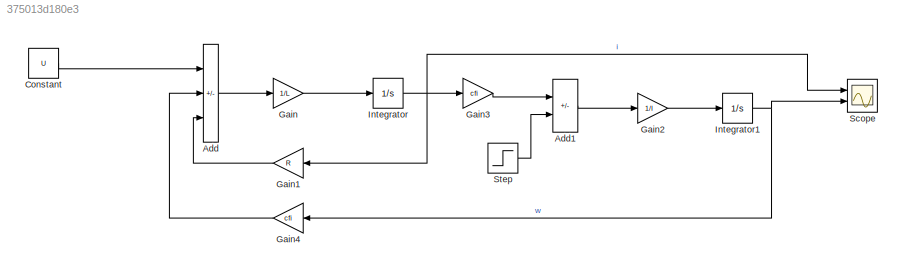
MODEL slx_375013d180e3
KIND model
CONFIG AbsTol = auto
CONFIG EnableMultiTasking = off
CONFIG FixedStep = auto
CONFIG MaxStep = 1e-3
CONFIG MinStep = auto
CONFIG RelTol = 1e-3
CONFIG SampleTimeConstraint = Unconstrained
CONFIG Solver = VariableStepAuto
CONFIG SolverName = VariableStepAuto
CONFIG StartTime = 0.0
CONFIG StopTime = 2
BLOCK [Sum] Add
  IconShape = rectangular
  Inputs = +--
  Ports = [3, 1]
BLOCK [Sum] Add1
  IconShape = rectangular
  Inputs = +-
  Ports = [2, 1]
BLOCK [Constant] Constant
  Value = U
BLOCK [Gain] Gain
  Gain = 1/L
BLOCK [Gain] Gain1
  Gain = R
BLOCK [Gain] Gain2
  Gain = 1/I
BLOCK [Gain] Gain3
  Gain = cfi
BLOCK [Gain] Gain4
  Gain = cfi
BLOCK [Integrator] Integrator
  Ports = [1, 1]
BLOCK [Integrator] Integrator1
  Ports = [1, 1]
BLOCK [Scope] Scope
  Floating = off
  NumInputPorts = 2
  Ports = [2]
  ScopeSpecificationString = Simulink.scopes.TimeScopeBlockCfg('CurrentConfiguration', extmgr.ConfigurationSet(extmgr.Configuration('Core','General UI',true),extmgr.Configuration('Core','Source UI',true),extmgr.Configuration('Sources','WiredSimulink',true),extmgr.Configuration('Visuals','Time Domain',true,'SerializedDisplays',{struct('MinYLimReal','-5.3306','MaxYLimReal','6.0995','YLabelReal','','MinYLimMag','0.00000','MaxYLi...<+2060ch>
BLOCK [Step] Step
  After = Mz
  SampleTime = 0
LINE Add1:1 -> Gain2:1
LINE Add:1 -> Gain:1
LINE Constant:1 -> Add:1
LINE Gain1:1 -> Add:3
LINE Gain2:1 -> Integrator1:1
LINE Gain3:1 -> Add1:1
LINE Gain4:1 -> Add:2
LINE Gain:1 -> Integrator:1
NET Integrator1:1 -> Gain4:1, Scope:2
NET Integrator:1 -> Gain1:1, Gain3:1, Scope:1
LINE Step:1 -> Add1:2
note: NET lines group one-source signal fan-out (src -> all destinations, sorted); 1:1 wires keep LINE
